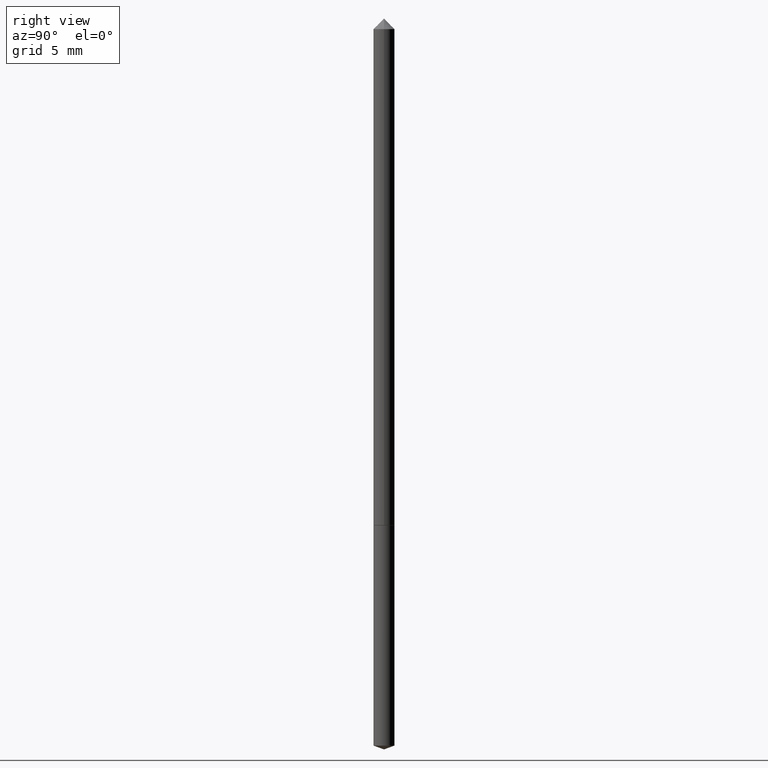
[diagram: clean part render]
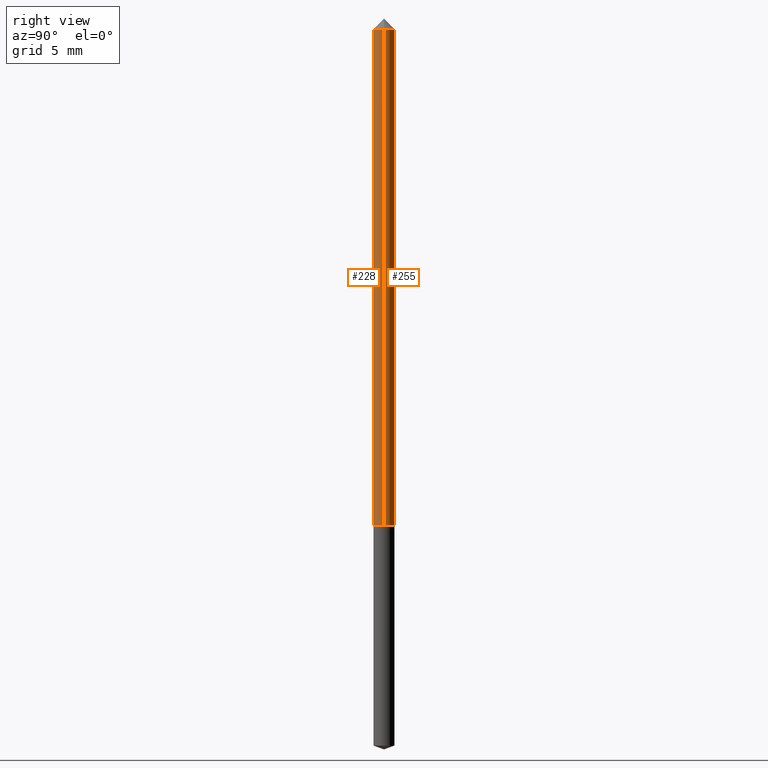
[diagram: same view with one multi-face feature highlighted, each face labeled with its STEP entity id]
A machine part, right view. The highlighted faces form ONE feature: a constant-radius fillet chain: 2 tangent blend faces with common blend radius 0.5461 mm. The faces share edges in the B-rep.
Their STEP definitions:
[1] entity #228 (Cylinder):
#4 = AXIS2_PLACEMENT_3D ( 'NONE', #241, #244, #138 ) ;
#7 = AXIS2_PLACEMENT_3D ( 'NONE', #104, #264, #71 ) ;
#11 = CARTESIAN_POINT ( 'NONE',  ( 0.02150000000000000522, -2.592424894091037817E-16, -0.03125000000000020123 ) ) ;
#22 = EDGE_CURVE ( 'NONE', #189, #74, #66, .T. ) ;
#25 = CYLINDRICAL_SURFACE ( 'NONE', #4, 0.02150000000000006420 ) ;
#28 = EDGE_CURVE ( 'NONE', #67, #314, #318, .T. ) ;
#44 = CARTESIAN_POINT ( 'NONE',  ( 0.02150000000000006420, -1.501336975702551741E-16, 1.048378006796129180E-30 ) ) ;
#51 = DIRECTION ( 'NONE',  ( -2.445468806185136877E-29, 3.491481338843145188E-15, 1.000000000000000000 ) ) ;
#66 = CIRCLE ( 'NONE', #7, 0.02150000000000012665 ) ;
#67 = VERTEX_POINT ( 'NONE', #132 ) ;
#71 = DIRECTION ( 'NONE',  ( 1.000000000000000000, -6.982962677686269077E-15, 0.000000000000000000 ) ) ;
#74 = VERTEX_POINT ( 'NONE', #284 ) ;
#78 = CARTESIAN_POINT ( 'NONE',  ( -0.02150000000000006420, 1.527666881884219961E-16, -1.057571044404808028E-30 ) ) ;
#91 = LINE ( 'NONE', #44, #343 ) ;
#92 = EDGE_CURVE ( 'NONE', #189, #67, #323, .T. ) ;
#95 = ORIENTED_EDGE ( 'NONE', *, *, #28, .F. ) ;
#96 = EDGE_LOOP ( 'NONE', ( #122, #208, #206, #95 ) ) ;
#104 = CARTESIAN_POINT ( 'NONE',  ( 2.549401230448005104E-29, -3.639869295743979302E-15, -1.042499999999999982 ) ) ;
#122 = ORIENTED_EDGE ( 'NONE', *, *, #92, .F. ) ;
#128 = DIRECTION ( 'NONE',  ( -2.445468806185136877E-29, 3.491481338843145188E-15, 1.000000000000000000 ) ) ;
#132 = CARTESIAN_POINT ( 'NONE',  ( -0.02150000000000000522, -1.721722355602989962E-15, -0.03125000000000020123 ) ) ;
#138 = DIRECTION ( 'NONE',  ( 1.000000000000000000, -6.982962677686265922E-15, 4.876176775795935232E-29 ) ) ;
#166 = DIRECTION ( 'NONE',  ( 1.000000000000000000, -6.982962677686265922E-15, 0.000000000000000000 ) ) ;
#189 = VERTEX_POINT ( 'NONE', #196 ) ;
#194 = FACE_OUTER_BOUND ( 'NONE', #96, .T. ) ;
#196 = CARTESIAN_POINT ( 'NONE',  ( -0.02150000000000012665, -3.487102607555557232E-15, -1.042499999999999982 ) ) ;
#206 = ORIENTED_EDGE ( 'NONE', *, *, #337, .T. ) ;
#208 = ORIENTED_EDGE ( 'NONE', *, *, #22, .T. ) ;
#212 = CARTESIAN_POINT ( 'NONE',  ( 7.642090019328601786E-31, -1.091087918388490144E-16, -0.03125000000000020123 ) ) ;
#228 = ADVANCED_FACE ( 'NONE', ( #194 ), #25, .T. ) ;
#241 = CARTESIAN_POINT ( 'NONE',  ( 0.000000000000000000, 0.000000000000000000, 0.000000000000000000 ) ) ;
#244 = DIRECTION ( 'NONE',  ( -2.445468806185136597E-29, 3.491481338843145583E-15, 1.000000000000000000 ) ) ;
#264 = DIRECTION ( 'NONE',  ( -2.445468806185136597E-29, 3.491481338843145583E-15, 1.000000000000000000 ) ) ;
#278 = AXIS2_PLACEMENT_3D ( 'NONE', #212, #320, #166 ) ;
#284 = CARTESIAN_POINT ( 'NONE',  ( 0.02150000000000012665, -3.790002993314234920E-15, -1.042499999999999982 ) ) ;
#296 = VECTOR ( 'NONE', #51, 39.37007874015748143 ) ;
#314 = VERTEX_POINT ( 'NONE', #11 ) ;
#318 = CIRCLE ( 'NONE', #278, 0.02150000000000000522 ) ;
#320 = DIRECTION ( 'NONE',  ( -2.445468806185136597E-29, 3.491481338843145583E-15, 1.000000000000000000 ) ) ;
#323 = LINE ( 'NONE', #78, #296 ) ;
#337 = EDGE_CURVE ( 'NONE', #74, #314, #91, .T. ) ;
#343 = VECTOR ( 'NONE', #128, 39.37007874015748143 ) ;
[2] entity #255 (Cylinder):
#11 = CARTESIAN_POINT ( 'NONE',  ( 0.02150000000000000522, -2.592424894091037817E-16, -0.03125000000000020123 ) ) ;
#27 = DIRECTION ( 'NONE',  ( 1.000000000000000000, -6.982962677686265922E-15, 0.000000000000000000 ) ) ;
#43 = CARTESIAN_POINT ( 'NONE',  ( 2.549401230448005104E-29, -3.639869295743979302E-15, -1.042499999999999982 ) ) ;
#44 = CARTESIAN_POINT ( 'NONE',  ( 0.02150000000000006420, -1.501336975702551741E-16, 1.048378006796129180E-30 ) ) ;
#51 = DIRECTION ( 'NONE',  ( -2.445468806185136877E-29, 3.491481338843145188E-15, 1.000000000000000000 ) ) ;
#67 = VERTEX_POINT ( 'NONE', #132 ) ;
#70 = ORIENTED_EDGE ( 'NONE', *, *, #75, .T. ) ;
#74 = VERTEX_POINT ( 'NONE', #284 ) ;
#75 = EDGE_CURVE ( 'NONE', #74, #189, #325, .T. ) ;
#78 = CARTESIAN_POINT ( 'NONE',  ( -0.02150000000000006420, 1.527666881884219961E-16, -1.057571044404808028E-30 ) ) ;
#80 = DIRECTION ( 'NONE',  ( 1.000000000000000000, -6.982962677686265922E-15, 4.876176775795935232E-29 ) ) ;
#84 = AXIS2_PLACEMENT_3D ( 'NONE', #179, #329, #27 ) ;
#91 = LINE ( 'NONE', #44, #343 ) ;
#92 = EDGE_CURVE ( 'NONE', #189, #67, #323, .T. ) ;
#101 = ORIENTED_EDGE ( 'NONE', *, *, #226, .F. ) ;
#128 = DIRECTION ( 'NONE',  ( -2.445468806185136877E-29, 3.491481338843145188E-15, 1.000000000000000000 ) ) ;
#132 = CARTESIAN_POINT ( 'NONE',  ( -0.02150000000000000522, -1.721722355602989962E-15, -0.03125000000000020123 ) ) ;
#161 = DIRECTION ( 'NONE',  ( 1.000000000000000000, -6.982962677686269077E-15, 0.000000000000000000 ) ) ;
#179 = CARTESIAN_POINT ( 'NONE',  ( 7.642090019328601786E-31, -1.091087918388490144E-16, -0.03125000000000020123 ) ) ;
#182 = EDGE_LOOP ( 'NONE', ( #70, #306, #101, #253 ) ) ;
#189 = VERTEX_POINT ( 'NONE', #196 ) ;
#196 = CARTESIAN_POINT ( 'NONE',  ( -0.02150000000000012665, -3.487102607555557232E-15, -1.042499999999999982 ) ) ;
#199 = CYLINDRICAL_SURFACE ( 'NONE', #290, 0.02150000000000006420 ) ;
#205 = AXIS2_PLACEMENT_3D ( 'NONE', #43, #239, #161 ) ;
#214 = CIRCLE ( 'NONE', #84, 0.02150000000000000522 ) ;
#216 = CARTESIAN_POINT ( 'NONE',  ( 0.000000000000000000, 0.000000000000000000, 0.000000000000000000 ) ) ;
#226 = EDGE_CURVE ( 'NONE', #314, #67, #214, .T. ) ;
#239 = DIRECTION ( 'NONE',  ( -2.445468806185136597E-29, 3.491481338843145583E-15, 1.000000000000000000 ) ) ;
#253 = ORIENTED_EDGE ( 'NONE', *, *, #337, .F. ) ;
#255 = ADVANCED_FACE ( 'NONE', ( #334 ), #199, .T. ) ;
#284 = CARTESIAN_POINT ( 'NONE',  ( 0.02150000000000012665, -3.790002993314234920E-15, -1.042499999999999982 ) ) ;
#290 = AXIS2_PLACEMENT_3D ( 'NONE', #216, #359, #80 ) ;
#296 = VECTOR ( 'NONE', #51, 39.37007874015748143 ) ;
#306 = ORIENTED_EDGE ( 'NONE', *, *, #92, .T. ) ;
#314 = VERTEX_POINT ( 'NONE', #11 ) ;
#323 = LINE ( 'NONE', #78, #296 ) ;
#325 = CIRCLE ( 'NONE', #205, 0.02150000000000012665 ) ;
#329 = DIRECTION ( 'NONE',  ( -2.445468806185136597E-29, 3.491481338843145583E-15, 1.000000000000000000 ) ) ;
#334 = FACE_OUTER_BOUND ( 'NONE', #182, .T. ) ;
#337 = EDGE_CURVE ( 'NONE', #74, #314, #91, .T. ) ;
#343 = VECTOR ( 'NONE', #128, 39.37007874015748143 ) ;
#359 = DIRECTION ( 'NONE',  ( -2.445468806185136597E-29, 3.491481338843145583E-15, 1.000000000000000000 ) ) ;